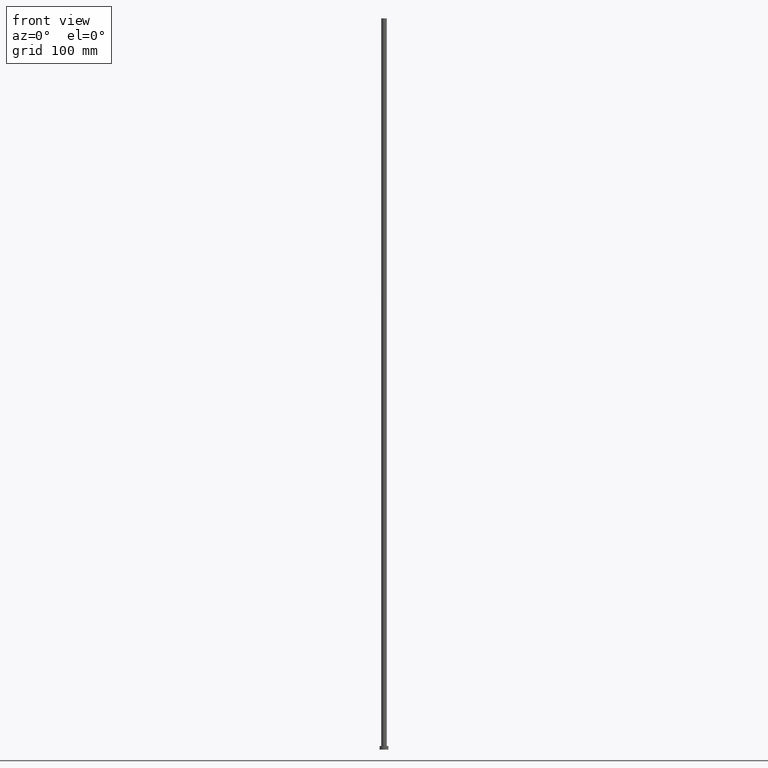
[diagram: clean part render]
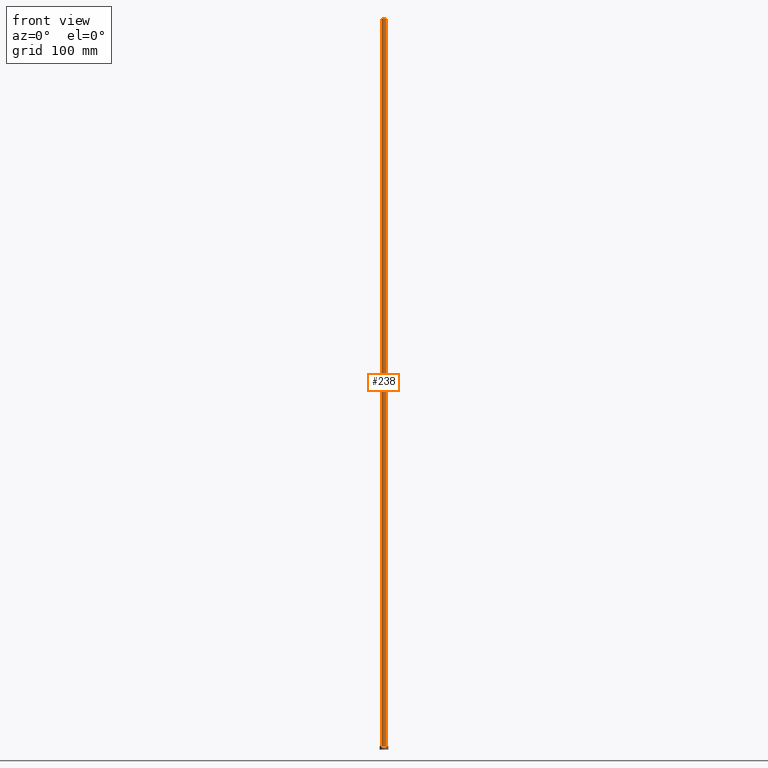
[diagram: same view with one face highlighted and labeled with its STEP entity id]
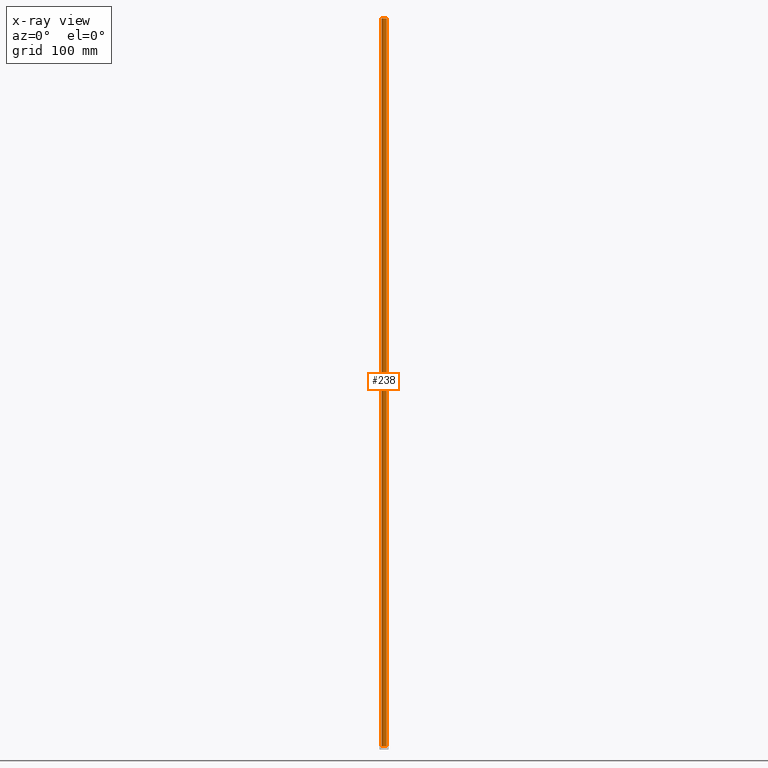
[diagram: x-ray of the same camera — body ghosted, the highlighted face saturated]
A machine part, front view. The second image highlights one B-rep face of the part: STEP entity #238.
The next image is the same camera in x-ray: the body ghosted, the highlighted face saturated — about 0% of this face is hidden behind the body in this view.
In plain terms, the highlighted cylindrical surface (edge-blend (fillet) strip) has radius 3.75 mm, axis along (-0, -0, -1).
Its self-contained STEP definition (entity closure, byte-faithful):
#19 = VECTOR ( 'NONE', #22, 1000.000000000000000 ) ;
#20 = VERTEX_POINT ( 'NONE', #246 ) ;
#22 = DIRECTION ( 'NONE',  ( -0.000000000000000000, -0.000000000000000000, -1.000000000000000000 ) ) ;
#40 = ORIENTED_EDGE ( 'NONE', *, *, #214, .T. ) ;
#43 = EDGE_CURVE ( 'NONE', #211, #20, #102, .T. ) ;
#46 = CARTESIAN_POINT ( 'NONE',  ( 0.000000000000000000, 0.000000000000000000, 1000.000000000000000 ) ) ;
#51 = CARTESIAN_POINT ( 'NONE',  ( 3.750000000000000000, 4.592425496802572986E-16, 1000.000000000000000 ) ) ;
#52 = DIRECTION ( 'NONE',  ( -0.000000000000000000, -0.000000000000000000, -1.000000000000000000 ) ) ;
#79 = CARTESIAN_POINT ( 'NONE',  ( 0.000000000000000000, 0.000000000000000000, 1000.000000000000000 ) ) ;
#87 = EDGE_CURVE ( 'NONE', #211, #163, #104, .T. ) ;
#98 = DIRECTION ( 'NONE',  ( 1.000000000000000000, 0.000000000000000000, 0.000000000000000000 ) ) ;
#101 = AXIS2_PLACEMENT_3D ( 'NONE', #79, #52, #151 ) ;
#102 = CIRCLE ( 'NONE', #137, 3.750000000000000000 ) ;
#104 = LINE ( 'NONE', #194, #19 ) ;
#113 = DIRECTION ( 'NONE',  ( -0.000000000000000000, -0.000000000000000000, -1.000000000000000000 ) ) ;
#116 = CYLINDRICAL_SURFACE ( 'NONE', #101, 3.750000000000000000 ) ;
#124 = DIRECTION ( 'NONE',  ( 1.000000000000000000, 0.000000000000000000, 0.000000000000000000 ) ) ;
#137 = AXIS2_PLACEMENT_3D ( 'NONE', #46, #190, #124 ) ;
#139 = VERTEX_POINT ( 'NONE', #218 ) ;
#144 = AXIS2_PLACEMENT_3D ( 'NONE', #216, #148, #98 ) ;
#146 = CARTESIAN_POINT ( 'NONE',  ( -3.750000000000000000, 0.000000000000000000, 1000.000000000000000 ) ) ;
#148 = DIRECTION ( 'NONE',  ( 0.000000000000000000, 0.000000000000000000, 1.000000000000000000 ) ) ;
#151 = DIRECTION ( 'NONE',  ( -1.000000000000000000, 0.000000000000000000, 0.000000000000000000 ) ) ;
#157 = EDGE_CURVE ( 'NONE', #20, #139, #237, .T. ) ;
#163 = VERTEX_POINT ( 'NONE', #221 ) ;
#173 = ORIENTED_EDGE ( 'NONE', *, *, #43, .F. ) ;
#175 = FACE_OUTER_BOUND ( 'NONE', #245, .T. ) ;
#176 = CIRCLE ( 'NONE', #144, 3.750000000000000000 ) ;
#190 = DIRECTION ( 'NONE',  ( 0.000000000000000000, 0.000000000000000000, 1.000000000000000000 ) ) ;
#194 = CARTESIAN_POINT ( 'NONE',  ( -3.750000000000000000, 0.000000000000000000, 1000.000000000000000 ) ) ;
#198 = VECTOR ( 'NONE', #113, 1000.000000000000000 ) ;
#211 = VERTEX_POINT ( 'NONE', #146 ) ;
#214 = EDGE_CURVE ( 'NONE', #163, #139, #176, .T. ) ;
#216 = CARTESIAN_POINT ( 'NONE',  ( 0.000000000000000000, 0.000000000000000000, 5.000000000000000000 ) ) ;
#218 = CARTESIAN_POINT ( 'NONE',  ( 3.750000000000000000, 4.592425496802572986E-16, 5.000000000000000000 ) ) ;
#221 = CARTESIAN_POINT ( 'NONE',  ( -3.750000000000000000, 0.000000000000000000, 5.000000000000000000 ) ) ;
#225 = ORIENTED_EDGE ( 'NONE', *, *, #87, .T. ) ;
#237 = LINE ( 'NONE', #51, #198 ) ;
#238 = ADVANCED_FACE ( 'NONE', ( #175 ), #116, .T. ) ;
#245 = EDGE_LOOP ( 'NONE', ( #248, #173, #225, #40 ) ) ;
#246 = CARTESIAN_POINT ( 'NONE',  ( 3.750000000000000000, 4.592425496802572986E-16, 1000.000000000000000 ) ) ;
#248 = ORIENTED_EDGE ( 'NONE', *, *, #157, .F. ) ;